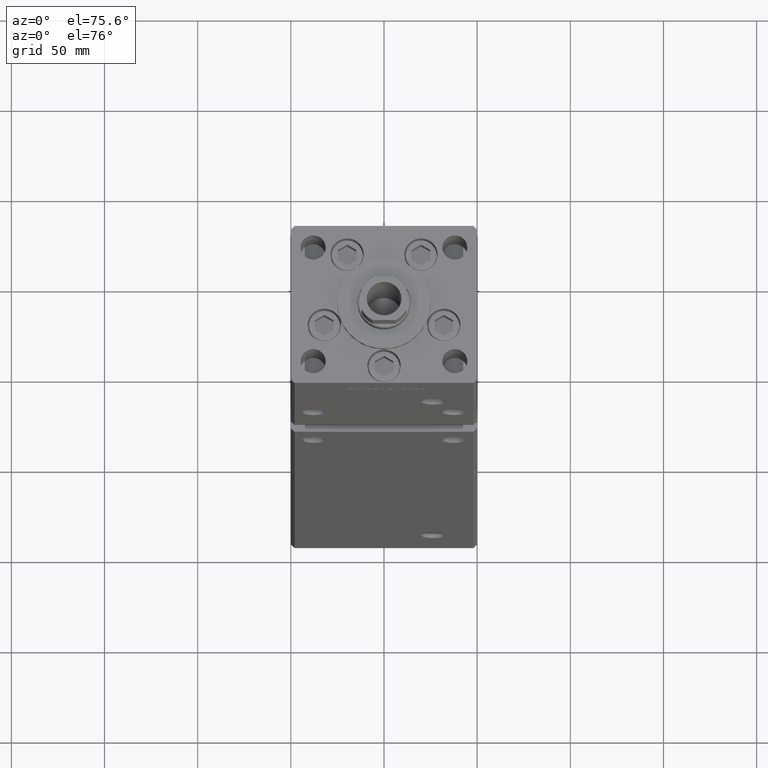
[diagram: clean part render]
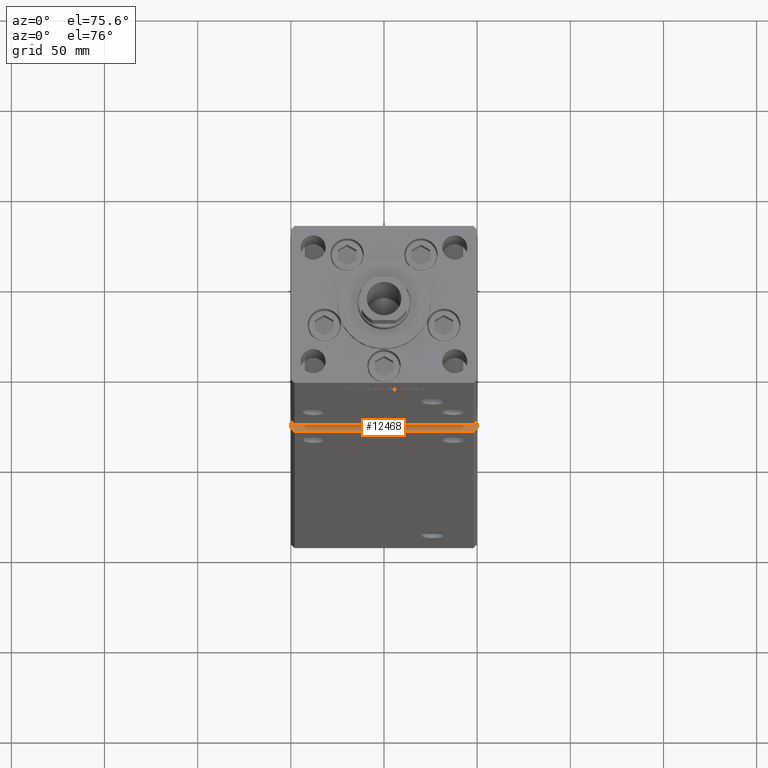
[diagram: same view with one face highlighted and labeled with its STEP entity id]
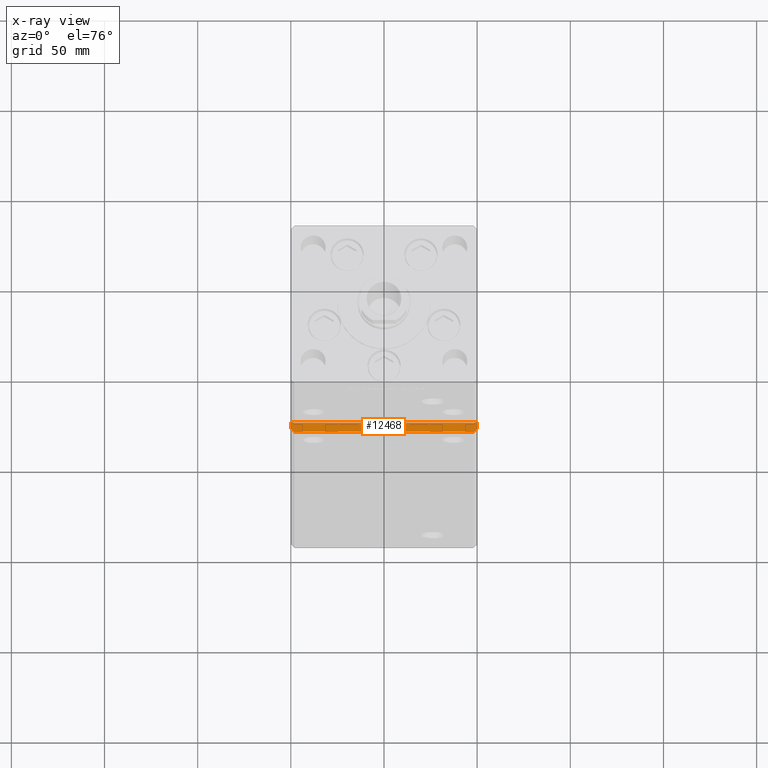
[diagram: x-ray of the same camera — body ghosted, the highlighted face saturated]
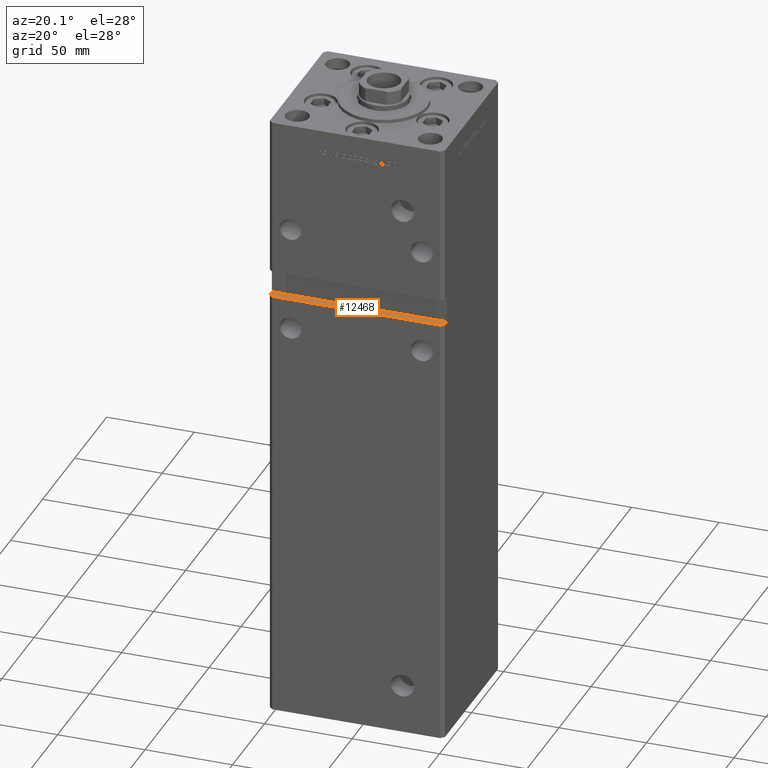
[diagram: same view with one face highlighted and labeled with its STEP entity id]
A machine part, auxiliary view. The second image highlights one B-rep face of the part: STEP entity #12468.
The next image is the same camera in x-ray: the body ghosted, the highlighted face saturated — about 0% of this face is hidden behind the body in this view.
A second angle (auxiliary view) of the same face is appended — the face is thin or edge-on in the first view.
In plain terms, the highlighted planar face has unit normal (0, 0, -1).
Its self-contained STEP definition (entity closure, byte-faithful):
#1851 = EDGE_CURVE ( 'NONE', #4945, #13714, #12601, .T. ) ;
#2068 = FACE_OUTER_BOUND ( 'NONE', #32248, .T. ) ;
#2940 = CARTESIAN_POINT ( 'NONE',  ( -47.99999999999998579, -43.50000000000000000, 231.9999999999999716 ) ) ;
#3964 = LINE ( 'NONE', #25150, #21880 ) ;
#4568 = VERTEX_POINT ( 'NONE', #22417 ) ;
#4772 = CARTESIAN_POINT ( 'NONE',  ( -49.99999999999998579, -38.50000000000000000, 231.9999999999999716 ) ) ;
#4945 = VERTEX_POINT ( 'NONE', #41684 ) ;
#11734 = EDGE_CURVE ( 'NONE', #47874, #33495, #18780, .T. ) ;
#12468 = ADVANCED_FACE ( 'NONE', ( #2068 ), #51265, .F. ) ;
#12601 = LINE ( 'NONE', #37340, #17314 ) ;
#13557 = CARTESIAN_POINT ( 'NONE',  ( 49.99999999999998579, -41.49999999999999289, 231.9999999999999716 ) ) ;
#13714 = VERTEX_POINT ( 'NONE', #49606 ) ;
#14412 = DIRECTION ( 'NONE',  ( 0.000000000000000000, 0.000000000000000000, -1.000000000000000000 ) ) ;
#14855 = LINE ( 'NONE', #47926, #19401 ) ;
#14936 = DIRECTION ( 'NONE',  ( -1.000000000000000000, 0.000000000000000000, -0.000000000000000000 ) ) ;
#15804 = ORIENTED_EDGE ( 'NONE', *, *, #24706, .T. ) ;
#17314 = VECTOR ( 'NONE', #37077, 1000.000000000000000 ) ;
#18780 = LINE ( 'NONE', #35201, #34675 ) ;
#19345 = LINE ( 'NONE', #4772, #24466 ) ;
#19401 = VECTOR ( 'NONE', #48181, 1000.000000000000000 ) ;
#20633 = EDGE_CURVE ( 'NONE', #4945, #33495, #19345, .T. ) ;
#21880 = VECTOR ( 'NONE', #52866, 1000.000000000000000 ) ;
#22417 = CARTESIAN_POINT ( 'NONE',  ( 47.99999999999998579, -43.50000000000000000, 231.9999999999999716 ) ) ;
#22669 = VERTEX_POINT ( 'NONE', #13557 ) ;
#24466 = VECTOR ( 'NONE', #49908, 1000.000000000000000 ) ;
#24706 = EDGE_CURVE ( 'NONE', #4568, #22669, #41799, .T. ) ;
#25150 = CARTESIAN_POINT ( 'NONE',  ( 49.99999999999998579, -38.50000000000000000, 231.9999999999999716 ) ) ;
#29690 = CARTESIAN_POINT ( 'NONE',  ( 49.99999999999998579, -41.49999999999999289, 231.9999999999999716 ) ) ;
#31155 = DIRECTION ( 'NONE',  ( -0.7071067811865474617, 0.7071067811865474617, 0.000000000000000000 ) ) ;
#32248 = EDGE_LOOP ( 'NONE', ( #35963, #15804, #36279, #36354, #44626, #39501 ) ) ;
#33495 = VERTEX_POINT ( 'NONE', #41619 ) ;
#34575 = CARTESIAN_POINT ( 'NONE',  ( -49.99999999999998579, -38.50000000000000000, 231.9999999999999716 ) ) ;
#34675 = VECTOR ( 'NONE', #31155, 1000.000000000000114 ) ;
#35201 = CARTESIAN_POINT ( 'NONE',  ( -49.99999999999998579, -41.49999999999999289, 231.9999999999999716 ) ) ;
#35963 = ORIENTED_EDGE ( 'NONE', *, *, #45420, .T. ) ;
#36279 = ORIENTED_EDGE ( 'NONE', *, *, #43777, .F. ) ;
#36354 = ORIENTED_EDGE ( 'NONE', *, *, #1851, .F. ) ;
#37077 = DIRECTION ( 'NONE',  ( 1.000000000000000000, 0.000000000000000000, 0.000000000000000000 ) ) ;
#37340 = CARTESIAN_POINT ( 'NONE',  ( -49.99999999999998579, -38.50000000000000000, 231.9999999999999716 ) ) ;
#37751 = DIRECTION ( 'NONE',  ( 0.7071067811865474617, 0.7071067811865474617, 0.000000000000000000 ) ) ;
#38127 = AXIS2_PLACEMENT_3D ( 'NONE', #34575, #14412, #14936 ) ;
#39501 = ORIENTED_EDGE ( 'NONE', *, *, #11734, .F. ) ;
#41619 = CARTESIAN_POINT ( 'NONE',  ( -49.99999999999998579, -41.49999999999999289, 231.9999999999999716 ) ) ;
#41684 = CARTESIAN_POINT ( 'NONE',  ( -49.99999999999998579, -38.50000000000000000, 231.9999999999999716 ) ) ;
#41781 = VECTOR ( 'NONE', #37751, 1000.000000000000114 ) ;
#41799 = LINE ( 'NONE', #29690, #41781 ) ;
#43777 = EDGE_CURVE ( 'NONE', #13714, #22669, #3964, .T. ) ;
#44626 = ORIENTED_EDGE ( 'NONE', *, *, #20633, .T. ) ;
#45420 = EDGE_CURVE ( 'NONE', #47874, #4568, #14855, .T. ) ;
#47874 = VERTEX_POINT ( 'NONE', #2940 ) ;
#47926 = CARTESIAN_POINT ( 'NONE',  ( -49.99999999999998579, -43.50000000000000000, 231.9999999999999716 ) ) ;
#48181 = DIRECTION ( 'NONE',  ( 1.000000000000000000, 0.000000000000000000, 0.000000000000000000 ) ) ;
#49606 = CARTESIAN_POINT ( 'NONE',  ( 49.99999999999998579, -38.49999999999999289, 231.9999999999999716 ) ) ;
#49908 = DIRECTION ( 'NONE',  ( -0.000000000000000000, -1.000000000000000000, -0.000000000000000000 ) ) ;
#51265 = PLANE ( 'NONE',  #38127 ) ;
#52866 = DIRECTION ( 'NONE',  ( -0.000000000000000000, -1.000000000000000000, -0.000000000000000000 ) ) ;